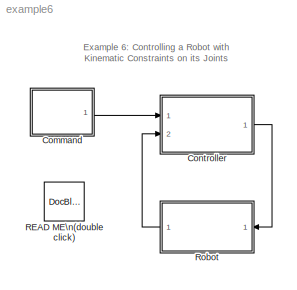
MODEL example6
KIND model
WORKSPACE source: external: M-Code  (data not in archive)
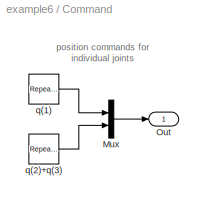
BLOCK [SubSystem] Command
  FunctionWithSeparateData = off
  MaskHideContents = off
  MinAlgLoopOccurrences = off
  Opaque = off
  Ports = [0, 1]
  PropExecContextOutsideSubsystem = off
  RTWSystemCode = Auto
  RequestExecContextInheritance = off
BLOCK [Mux] Command/Mux
  DisplayOption = bar
  Inputs = 2
  Ports = [2, 1]
BLOCK [Outport] Command/Out
  IconDisplay = Port number
  OutDataType = sfix(16)
  OutScaling = 2^0
BLOCK [Reference] Command/q(1)  REF=simulink/Sources/Repeating\nSequence
  FunctionWithSeparateData = off
  Ports = [0, 1]
  RTWMemSecDataConstants = Inherit from model
  RTWMemSecDataInternal = Inherit from model
  RTWMemSecDataParameters = Inherit from model
  RTWMemSecFuncExecute = Inherit from model
  RTWMemSecFuncInitTerm = Inherit from model
  ShowPortLabels = FromPortIcon
  SourceBlock = simulink/Sources/Repeating\nSequence
  SourceType = Repeating table
  SystemSampleTime = -1
  rep_seq_t = [0 1 2 3 4]
  rep_seq_y = [0 1 1 0 0]
BLOCK [Reference] Command/q(2)+q(3)  REF=simulink/Sources/Repeating\nSequence
  FunctionWithSeparateData = off
  Ports = [0, 1]
  RTWMemSecDataConstants = Inherit from model
  RTWMemSecDataInternal = Inherit from model
  RTWMemSecDataParameters = Inherit from model
  RTWMemSecFuncExecute = Inherit from model
  RTWMemSecFuncInitTerm = Inherit from model
  ShowPortLabels = FromPortIcon
  SourceBlock = simulink/Sources/Repeating\nSequence
  SourceType = Repeating table
  SystemSampleTime = -1
  rep_seq_t = [0 1 2 3 4]
  rep_seq_y = [0 2.5 2.5 0 0]
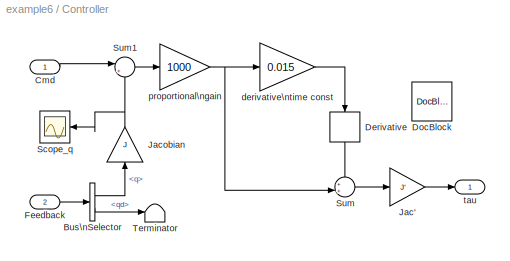
BLOCK [SubSystem] Controller
  FunctionWithSeparateData = off
  MaskHideContents = off
  MinAlgLoopOccurrences = off
  Opaque = off
  Ports = [2, 1]
  PropExecContextOutsideSubsystem = off
  RTWSystemCode = Auto
  RequestExecContextInheritance = off
BLOCK [BusSelector] Controller/Bus\nSelector
  OutputSignals = q,qd
  Ports = [1, 2]
BLOCK [Inport] Controller/Cmd
  IconDisplay = Port number
  OutDataType = sfix(16)
  OutScaling = 2^0
BLOCK [Derivative] Controller/Derivative
BLOCK [Reference] Controller/DocBlock  REF=simulink/Model-Wide\nUtilities/DocBlock
  DocumentType = Text
  FunctionWithSeparateData = off
  Ports = []
  RTWMemSecDataConstants = Inherit from model
  RTWMemSecDataInternal = Inherit from model
  RTWMemSecDataParameters = Inherit from model
  RTWMemSecFuncExecute = Inherit from model
  RTWMemSecFuncInitTerm = Inherit from model
  ShowPortLabels = FromPortIcon
  SourceBlock = simulink/Model-Wide\nUtilities/DocBlock
  SourceType = DocBlock
  SystemSampleTime = -1
  UserData = DataTag0
  UserDataPersistent = on
BLOCK [Inport] Controller/Feedback
  IconDisplay = Port number
  OutDataType = sfix(16)
  OutScaling = 2^0
  Port = 2
BLOCK [Gain] Controller/Jac'
  Gain = J'
  Multiplication = Matrix(K*u)
  OutDataType = sfix(16)
  OutDataTypeMode = Inherit via internal rule
  OutDataTypeStr = Inherit: Inherit via internal rule
  OutScaling = 2^0
  ParamDataTypeStr = Inherit: Inherit via internal rule
  ParameterDataType = sfix(16)
  ParameterDataTypeMode = Inherit via internal rule
  ParameterScaling = 2^0
  SaturateOnIntegerOverflow = off
BLOCK [Gain] Controller/Jacobian
  Gain = J
  Multiplication = Matrix(K*u)
  OutDataType = sfix(16)
  OutDataTypeMode = Inherit via internal rule
  OutDataTypeStr = Inherit: Inherit via internal rule
  OutScaling = 2^0
  ParamDataTypeStr = Inherit: Inherit via internal rule
  ParameterDataType = sfix(16)
  ParameterDataTypeMode = Inherit via internal rule
  ParameterScaling = 2^0
  SaturateOnIntegerOverflow = off
BLOCK [Scope] Controller/Scope_q
  DataFormat = StructureWithTime
  Floating = off
  NumInputPorts = 1
  Ports = [1]
  SampleTime = 0
  YMax = 2.7
  YMin = -0.2
BLOCK [Sum] Controller/Sum
  IconShape = round
  InputSameDT = off
  Inputs = ++|
  OutDataType = sfix(16)
  OutDataTypeMode = Inherit via internal rule
  OutDataTypeStr = Inherit: Inherit via internal rule
  OutScaling = 2^0
  Ports = [2, 1]
  SaturateOnIntegerOverflow = off
BLOCK [Sum] Controller/Sum1
  IconShape = round
  InputSameDT = off
  Inputs = |+-
  OutDataType = sfix(16)
  OutDataTypeMode = Inherit via internal rule
  OutDataTypeStr = Inherit: Inherit via internal rule
  OutScaling = 2^0
  Ports = [2, 1]
  SaturateOnIntegerOverflow = off
BLOCK [Terminator] Controller/Terminator
BLOCK [Gain] Controller/derivative\ntime const
  Gain = 0.015
  OutDataType = sfix(16)
  OutDataTypeMode = Inherit via internal rule
  OutDataTypeStr = Inherit: Inherit via internal rule
  OutScaling = 2^0
  ParamDataTypeStr = Inherit: Inherit via internal rule
  ParameterDataType = sfix(16)
  ParameterDataTypeMode = Inherit via internal rule
  ParameterScaling = 2^0
  SaturateOnIntegerOverflow = off
BLOCK [Gain] Controller/proportional\ngain
  Gain = 1000
  OutDataType = sfix(16)
  OutDataTypeMode = Inherit via internal rule
  OutDataTypeStr = Inherit: Inherit via internal rule
  OutScaling = 2^0
  ParamDataTypeStr = Inherit: Inherit via internal rule
  ParameterDataType = sfix(16)
  ParameterDataTypeMode = Inherit via internal rule
  ParameterScaling = 2^0
  SaturateOnIntegerOverflow = off
BLOCK [Outport] Controller/tau
  IconDisplay = Port number
  OutDataType = sfix(16)
  OutScaling = 2^0
BLOCK [Reference] READ ME\n(double click)  REF=simulink/Model-Wide\nUtilities/DocBlock
  DocumentType = Text
  FunctionWithSeparateData = off
  Ports = []
  RTWMemSecDataConstants = Inherit from model
  RTWMemSecDataInternal = Inherit from model
  RTWMemSecDataParameters = Inherit from model
  RTWMemSecFuncExecute = Inherit from model
  RTWMemSecFuncInitTerm = Inherit from model
  ShowPortLabels = FromPortIcon
  SourceBlock = simulink/Model-Wide\nUtilities/DocBlock
  SourceType = DocBlock
  SystemSampleTime = -1
  UserData = DataTag1
  UserDataPersistent = on
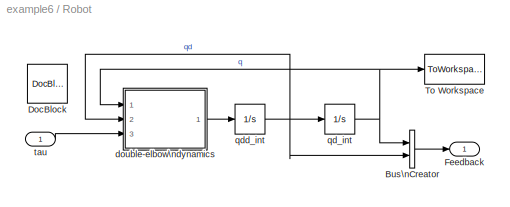
BLOCK [SubSystem] Robot
  FunctionWithSeparateData = off
  MaskHideContents = off
  MinAlgLoopOccurrences = off
  Opaque = off
  Ports = [1, 1]
  PropExecContextOutsideSubsystem = off
  RTWSystemCode = Auto
  RequestExecContextInheritance = off
BLOCK [BusCreator] Robot/Bus\nCreator
  DisplayOption = bar
  Inputs = 2
  Ports = [2, 1]
BLOCK [Reference] Robot/DocBlock  REF=simulink/Model-Wide\nUtilities/DocBlock
  DocumentType = Text
  FunctionWithSeparateData = off
  Ports = []
  RTWMemSecDataConstants = Inherit from model
  RTWMemSecDataInternal = Inherit from model
  RTWMemSecDataParameters = Inherit from model
  RTWMemSecFuncExecute = Inherit from model
  RTWMemSecFuncInitTerm = Inherit from model
  ShowPortLabels = FromPortIcon
  SourceBlock = simulink/Model-Wide\nUtilities/DocBlock
  SourceType = DocBlock
  SystemSampleTime = -1
  UserData = DataTag2
  UserDataPersistent = on
BLOCK [Outport] Robot/Feedback
  IconDisplay = Port number
  OutDataType = sfix(16)
  OutScaling = 2^0
BLOCK [ToWorkspace] Robot/To Workspace
  MaxDataPoints = inf
  SampleTime = -1
  SaveFormat = Array
  VariableName = qout
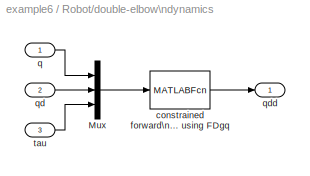
BLOCK [SubSystem] Robot/double-elbow\ndynamics
  FunctionWithSeparateData = off
  MaskHideContents = off
  MinAlgLoopOccurrences = off
  Opaque = off
  Ports = [3, 1]
  PropExecContextOutsideSubsystem = off
  RTWSystemCode = Auto
  RequestExecContextInheritance = off
BLOCK [Mux] Robot/double-elbow\ndynamics/Mux
  DisplayOption = bar
  Inputs = 3
  Ports = [3, 1]
BLOCK [MATLABFcn] Robot/double-elbow\ndynamics/constrained forward\ndynamics using FDgq
  MATLABFcn = FDgq( doubleElbow, u(1:3), u(4:6), u(7:9) )
  Output1D = off
  OutputDimensions = [3 1]
  OutputSignalType = real
  Ports = [1, 1]
BLOCK [Inport] Robot/double-elbow\ndynamics/q
  IconDisplay = Port number
  OutDataType = sfix(16)
  OutScaling = 2^0
BLOCK [Inport] Robot/double-elbow\ndynamics/qd
  IconDisplay = Port number
  OutDataType = sfix(16)
  OutScaling = 2^0
  Port = 2
BLOCK [Outport] Robot/double-elbow\ndynamics/qdd
  IconDisplay = Port number
  OutDataType = sfix(16)
  OutScaling = 2^0
BLOCK [Inport] Robot/double-elbow\ndynamics/tau
  IconDisplay = Port number
  OutDataType = sfix(16)
  OutScaling = 2^0
  Port = 3
BLOCK [Integrator] Robot/qd_int
  Ports = [1, 1]
BLOCK [Integrator] Robot/qdd_int
  Ports = [1, 1]
BLOCK [Inport] Robot/tau
  IconDisplay = Port number
  OutDataType = sfix(16)
  OutScaling = 2^0
ANNOTATION (root): Example 6: Controlling a Robot with\nKinematic Constraints on its Joints
ANNOTATION Command: position commands for\nindividual joints
LINE Command/Mux:1 -> Command/Out:1
LINE Command/q(1):1 -> Command/Mux:1
LINE Command/q(2)+q(3):1 -> Command/Mux:2
LINE Command:1 -> Controller:1
LINE Controller/Bus\nSelector:1 -> Controller/Jacobian:1
LINE Controller/Bus\nSelector:2 -> Controller/Terminator:1
LINE Controller/Cmd:1 -> Controller/Sum1:1
LINE Controller/Derivative:1 -> Controller/Sum:1
LINE Controller/Feedback:1 -> Controller/Bus\nSelector:1
LINE Controller/Jac':1 -> Controller/tau:1
NET Controller/Jacobian:1 -> Controller/Scope_q:1, Controller/Sum1:2
LINE Controller/Sum1:1 -> Controller/proportional\ngain:1
LINE Controller/Sum:1 -> Controller/Jac':1
LINE Controller/derivative\ntime const:1 -> Controller/Derivative:1
NET Controller/proportional\ngain:1 -> Controller/Sum:2, Controller/derivative\ntime const:1
LINE Controller:1 -> Robot:1
LINE Robot/Bus\nCreator:1 -> Robot/Feedback:1
LINE Robot/double-elbow\ndynamics/Mux:1 -> Robot/double-elbow\ndynamics/constrained forward\ndynamics using FDgq:1
LINE Robot/double-elbow\ndynamics/constrained forward\ndynamics using FDgq:1 -> Robot/double-elbow\ndynamics/qdd:1
LINE Robot/double-elbow\ndynamics/q:1 -> Robot/double-elbow\ndynamics/Mux:1
LINE Robot/double-elbow\ndynamics/qd:1 -> Robot/double-elbow\ndynamics/Mux:2
LINE Robot/double-elbow\ndynamics/tau:1 -> Robot/double-elbow\ndynamics/Mux:3
LINE Robot/double-elbow\ndynamics:1 -> Robot/qdd_int:1
NET Robot/qd_int:1 -> Robot/Bus\nCreator:1, Robot/To Workspace:1, Robot/double-elbow\ndynamics:1
NET Robot/qdd_int:1 -> Robot/Bus\nCreator:2, Robot/double-elbow\ndynamics:2, Robot/qd_int:1
LINE Robot/tau:1 -> Robot/double-elbow\ndynamics:3
LINE Robot:1 -> Controller:2
note: NET lines group one-source signal fan-out (src -> all destinations, sorted); 1:1 wires keep LINE
